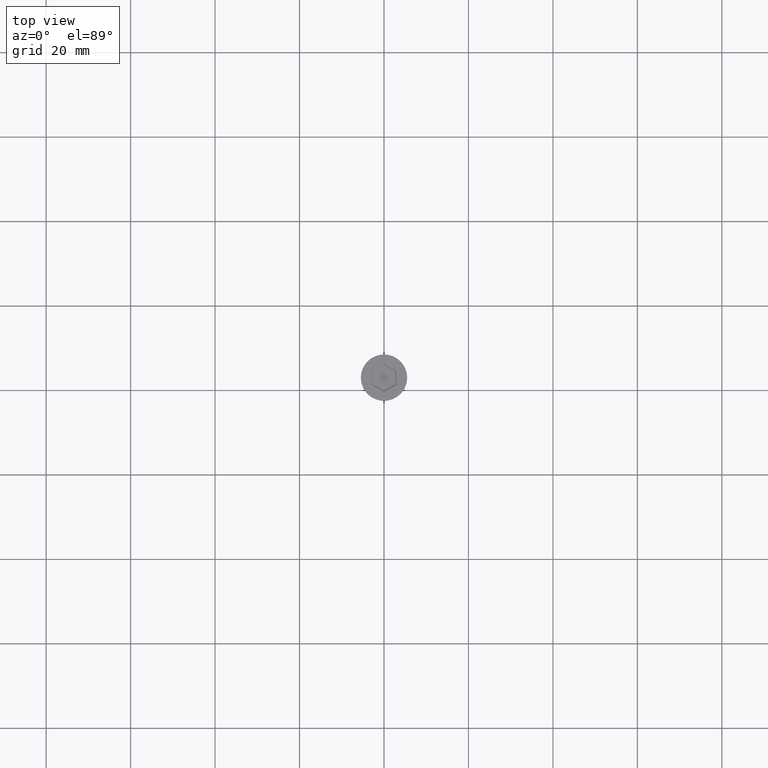
[diagram: clean part render]
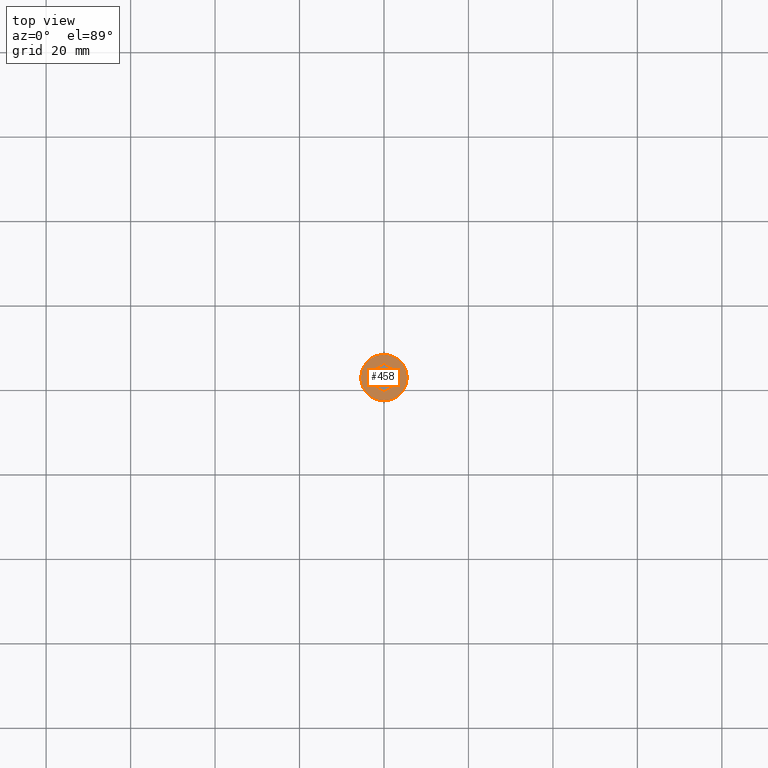
[diagram: same view with one face highlighted and labeled with its STEP entity id]
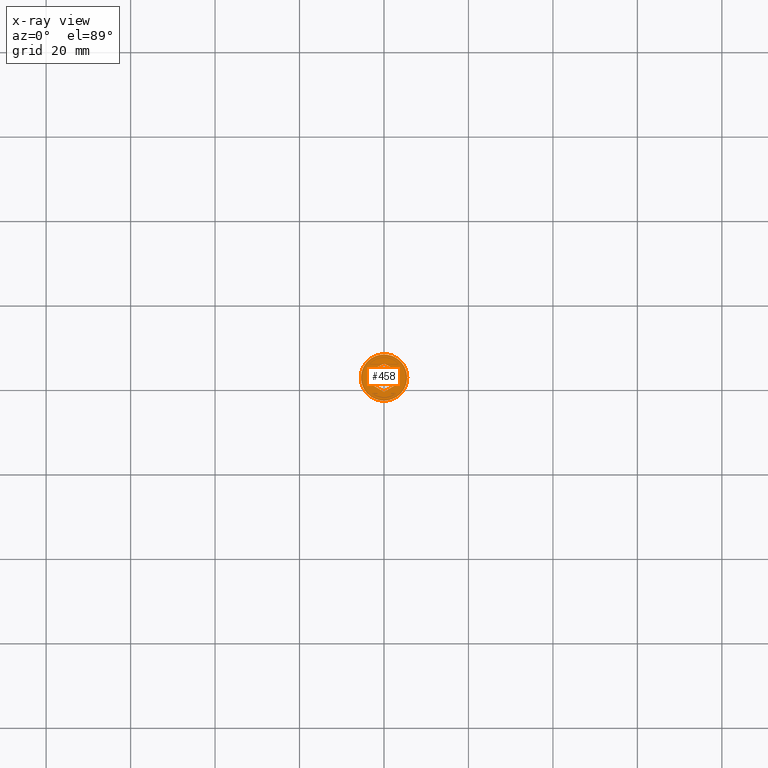
[diagram: x-ray of the same camera — body ghosted, the highlighted face saturated]
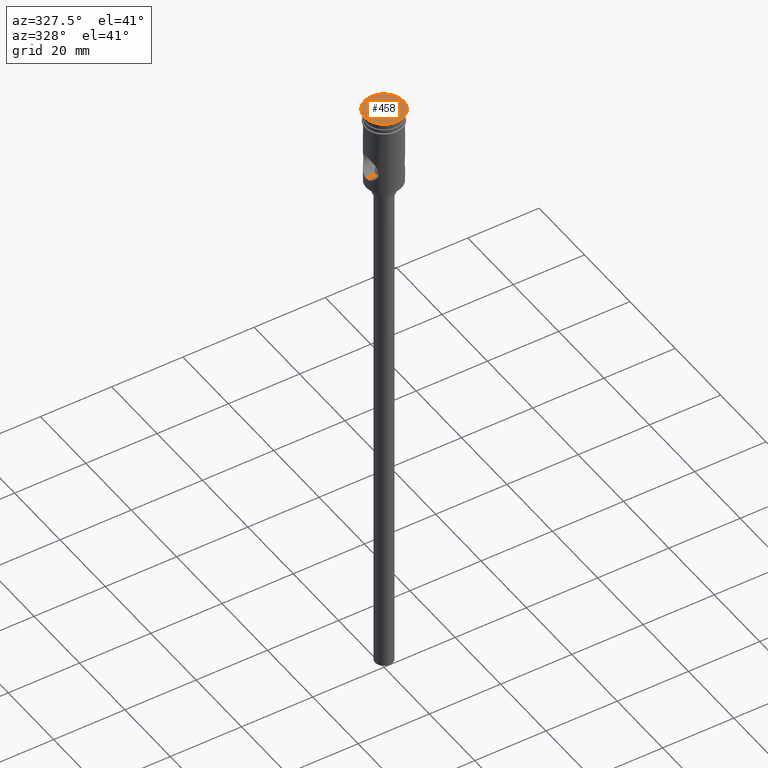
[diagram: same view with one face highlighted and labeled with its STEP entity id]
A machine part, top view. The second image highlights one B-rep face of the part: STEP entity #458.
The next image is the same camera in x-ray: the body ghosted, the highlighted face saturated — about 0% of this face is hidden behind the body in this view.
A second angle (auxiliary view) of the same face is appended — the face is thin or edge-on in the first view.
In plain terms, the highlighted planar face has unit normal (0, -0, 1).
Its self-contained STEP definition (entity closure, byte-faithful):
#31 = CARTESIAN_POINT ( 'NONE',  ( -2.799999999999997158, -1.732050807568871864, 0.000000000000000000 ) ) ;
#47 = CIRCLE ( 'NONE', #1354, 5.500000000000000000 ) ;
#103 = ORIENTED_EDGE ( 'NONE', *, *, #607, .T. ) ;
#104 = CARTESIAN_POINT ( 'NONE',  ( -2.899999999999994138, -1.674315780649910934, 0.000000000000000000 ) ) ;
#129 = CARTESIAN_POINT ( 'NONE',  ( 0.000000000000000000, 0.000000000000000000, 0.000000000000000000 ) ) ;
#143 = DIRECTION ( 'NONE',  ( -1.391032035867740017E-16, -1.000000000000000000, 0.000000000000000000 ) ) ;
#144 = VERTEX_POINT ( 'NONE', #1331 ) ;
#147 = EDGE_CURVE ( 'NONE', #463, #720, #1073, .T. ) ;
#153 = DIRECTION ( 'NONE',  ( 1.000000000000000000, 0.000000000000000000, 0.000000000000000000 ) ) ;
#164 = VECTOR ( 'NONE', #143, 1000.000000000000000 ) ;
#182 = EDGE_LOOP ( 'NONE', ( #103, #995, #704, #620, #573, #1377 ) ) ;
#199 = VERTEX_POINT ( 'NONE', #822 ) ;
#207 = CARTESIAN_POINT ( 'NONE',  ( -2.899999999999994138, 1.558845726811988852, 0.000000000000000000 ) ) ;
#216 = CARTESIAN_POINT ( 'NONE',  ( 0.000000000000000000, 0.000000000000000000, 0.000000000000000000 ) ) ;
#253 = LINE ( 'NONE', #1168, #1335 ) ;
#290 = VERTEX_POINT ( 'NONE', #104 ) ;
#294 = ORIENTED_EDGE ( 'NONE', *, *, #147, .T. ) ;
#357 = CARTESIAN_POINT ( 'NONE',  ( -5.500000000000000000, 6.735557395310442023E-16, 0.000000000000000000 ) ) ;
#366 = LINE ( 'NONE', #1051, #959 ) ;
#369 = DIRECTION ( 'NONE',  ( -0.8660254037844385966, 0.5000000000000001110, 0.000000000000000000 ) ) ;
#383 = VERTEX_POINT ( 'NONE', #1226 ) ;
#429 = CARTESIAN_POINT ( 'NONE',  ( -4.552601062339046804E-16, -3.348631561299821868, 0.000000000000000000 ) ) ;
#431 = EDGE_CURVE ( 'NONE', #383, #680, #366, .T. ) ;
#436 = CARTESIAN_POINT ( 'NONE',  ( 0.09999999999999654998, -3.290896534380861382, 0.000000000000000000 ) ) ;
#444 = DIRECTION ( 'NONE',  ( 0.000000000000000000, 1.000000000000000000, 0.000000000000000000 ) ) ;
#458 = ADVANCED_FACE ( 'NONE', ( #809, #801 ), #1286, .T. ) ;
#463 = VERTEX_POINT ( 'NONE', #357 ) ;
#515 = EDGE_CURVE ( 'NONE', #720, #463, #47, .T. ) ;
#543 = DIRECTION ( 'NONE',  ( -0.000000000000000000, -0.000000000000000000, 1.000000000000000000 ) ) ;
#573 = ORIENTED_EDGE ( 'NONE', *, *, #626, .T. ) ;
#575 = DIRECTION ( 'NONE',  ( 0.000000000000000000, -0.000000000000000000, 1.000000000000000000 ) ) ;
#584 = DIRECTION ( 'NONE',  ( -0.000000000000000000, -0.000000000000000000, 1.000000000000000000 ) ) ;
#599 = VECTOR ( 'NONE', #1224, 1000.000000000000000 ) ;
#607 = EDGE_CURVE ( 'NONE', #783, #290, #1385, .T. ) ;
#620 = ORIENTED_EDGE ( 'NONE', *, *, #431, .T. ) ;
#626 = EDGE_CURVE ( 'NONE', #680, #144, #703, .T. ) ;
#680 = VERTEX_POINT ( 'NONE', #987 ) ;
#700 = DIRECTION ( 'NONE',  ( 0.8660254037844387076, 0.4999999999999998890, 0.000000000000000000 ) ) ;
#703 = LINE ( 'NONE', #1378, #164 ) ;
#704 = ORIENTED_EDGE ( 'NONE', *, *, #1010, .T. ) ;
#714 = DIRECTION ( 'NONE',  ( 0.8660254037844387076, -0.4999999999999998335, 0.000000000000000000 ) ) ;
#720 = VERTEX_POINT ( 'NONE', #1125 ) ;
#744 = VECTOR ( 'NONE', #444, 1000.000000000000000 ) ;
#745 = EDGE_LOOP ( 'NONE', ( #1369, #294 ) ) ;
#783 = VERTEX_POINT ( 'NONE', #429 ) ;
#801 = FACE_OUTER_BOUND ( 'NONE', #745, .T. ) ;
#809 = FACE_BOUND ( 'NONE', #182, .T. ) ;
#815 = VECTOR ( 'NONE', #369, 1000.000000000000114 ) ;
#822 = CARTESIAN_POINT ( 'NONE',  ( -2.899999999999994138, 1.674315780649911600, 0.000000000000000000 ) ) ;
#921 = EDGE_CURVE ( 'NONE', #290, #199, #1225, .T. ) ;
#959 = VECTOR ( 'NONE', #714, 1000.000000000000000 ) ;
#987 = CARTESIAN_POINT ( 'NONE',  ( 2.899999999999992806, 1.674315780649911378, 0.000000000000000000 ) ) ;
#994 = LINE ( 'NONE', #436, #599 ) ;
#995 = ORIENTED_EDGE ( 'NONE', *, *, #921, .T. ) ;
#999 = DIRECTION ( 'NONE',  ( 1.000000000000000000, 0.000000000000000000, 0.000000000000000000 ) ) ;
#1010 = EDGE_CURVE ( 'NONE', #199, #383, #253, .T. ) ;
#1051 = CARTESIAN_POINT ( 'NONE',  ( 2.799999999999996270, 1.732050807568872086, 0.000000000000000000 ) ) ;
#1073 = CIRCLE ( 'NONE', #1290, 5.500000000000000000 ) ;
#1125 = CARTESIAN_POINT ( 'NONE',  ( 5.500000000000000000, 0.000000000000000000, 0.000000000000000000 ) ) ;
#1155 = CARTESIAN_POINT ( 'NONE',  ( 0.000000000000000000, 0.000000000000000000, 0.000000000000000000 ) ) ;
#1166 = AXIS2_PLACEMENT_3D ( 'NONE', #1155, #575, #1258 ) ;
#1168 = CARTESIAN_POINT ( 'NONE',  ( -0.09999999999999764633, 3.290896534380861382, 0.000000000000000000 ) ) ;
#1224 = DIRECTION ( 'NONE',  ( -0.8660254037844387076, -0.4999999999999998890, 0.000000000000000000 ) ) ;
#1225 = LINE ( 'NONE', #207, #744 ) ;
#1226 = CARTESIAN_POINT ( 'NONE',  ( -9.683804684061200344E-16, 3.348631561299821868, 0.000000000000000000 ) ) ;
#1258 = DIRECTION ( 'NONE',  ( 1.000000000000000000, 0.000000000000000000, 0.000000000000000000 ) ) ;
#1286 = PLANE ( 'NONE',  #1166 ) ;
#1290 = AXIS2_PLACEMENT_3D ( 'NONE', #216, #543, #999 ) ;
#1291 = EDGE_CURVE ( 'NONE', #144, #783, #994, .T. ) ;
#1331 = CARTESIAN_POINT ( 'NONE',  ( 2.899999999999992362, -1.674315780649911822, 0.000000000000000000 ) ) ;
#1335 = VECTOR ( 'NONE', #700, 1000.000000000000000 ) ;
#1354 = AXIS2_PLACEMENT_3D ( 'NONE', #129, #584, #153 ) ;
#1369 = ORIENTED_EDGE ( 'NONE', *, *, #515, .T. ) ;
#1377 = ORIENTED_EDGE ( 'NONE', *, *, #1291, .T. ) ;
#1378 = CARTESIAN_POINT ( 'NONE',  ( 2.899999999999992362, -1.558845726811989296, 0.000000000000000000 ) ) ;
#1385 = LINE ( 'NONE', #31, #815 ) ;